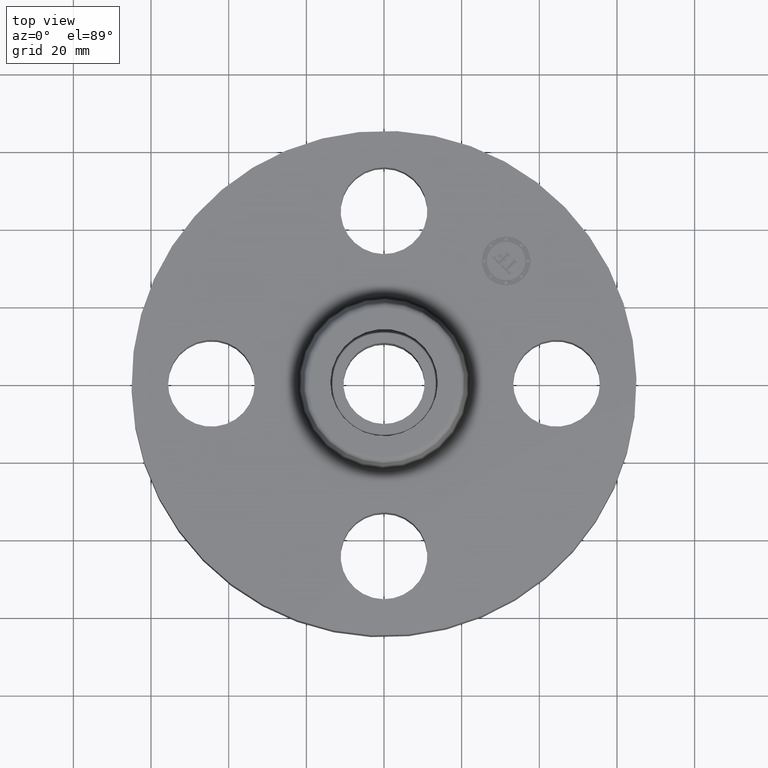
[diagram: clean part render]
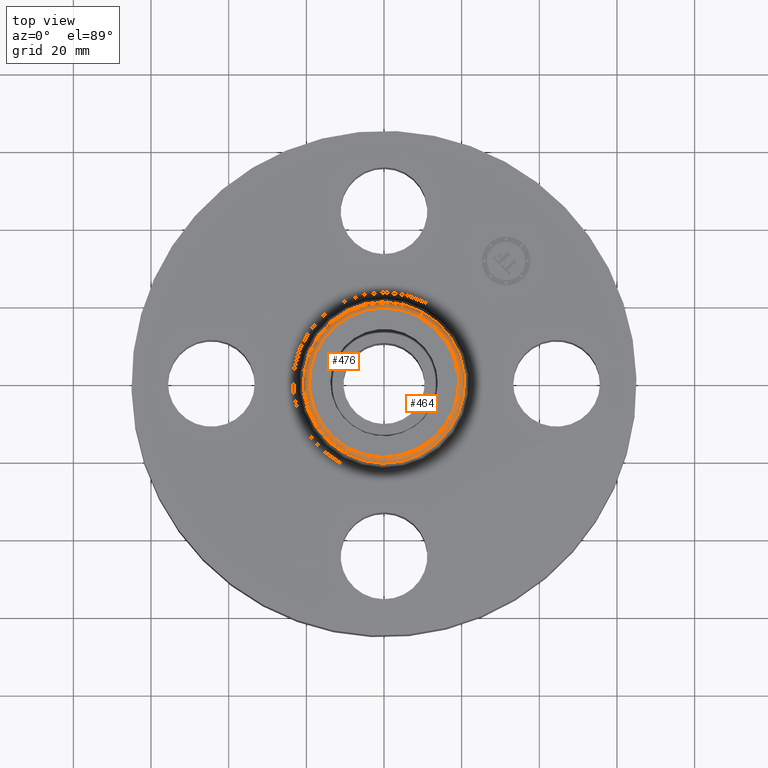
[diagram: same view with one multi-face feature highlighted, each face labeled with its STEP entity id]
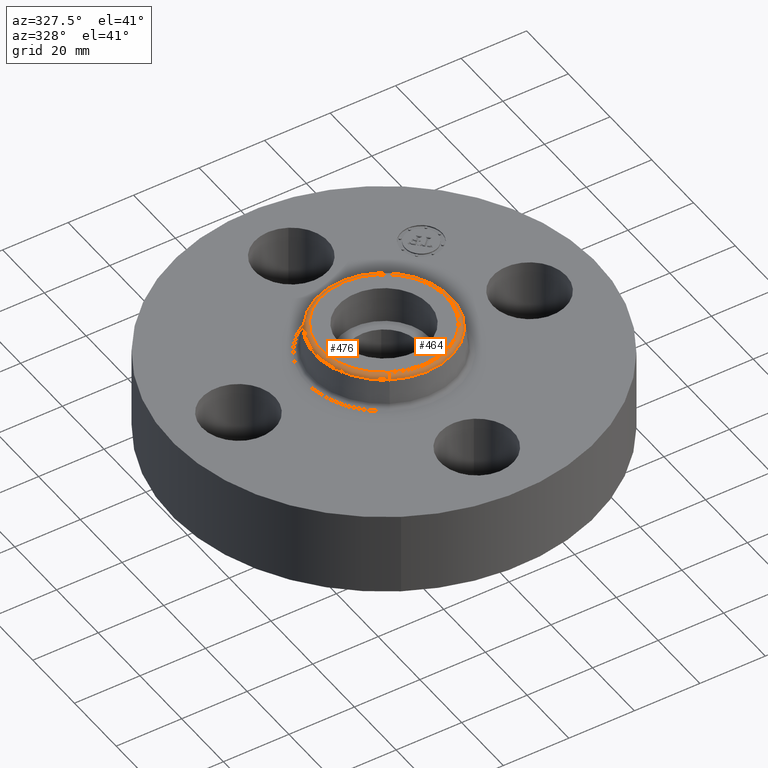
[diagram: same view with one multi-face feature highlighted, each face labeled with its STEP entity id]
A machine part, top view. The highlighted faces form ONE feature: a constant-radius fillet chain: 2 tangent blend faces with common blend radius 1.524 mm. The faces share edges in the B-rep.
A second angle (auxiliary view) of the same feature is appended — it is thin or edge-on in the first view.
Their STEP definitions:
[1] entity #464 (Torus):
#405=AXIS2_PLACEMENT_3D('Circle Axis2P3D',#403,#404,$) ;
#437=AXIS2_PLACEMENT_3D('Torus Axis2P3D',#434,#435,#436) ;
#441=AXIS2_PLACEMENT_3D('Circle Axis2P3D',#439,#440,$) ;
#448=AXIS2_PLACEMENT_3D('Circle Axis2P3D',#446,#447,$) ;
#455=AXIS2_PLACEMENT_3D('Circle Axis2P3D',#453,#454,$) ;
#400=CARTESIAN_POINT('Vertex',(0.391565168043,0.716755232353,1.33041889067)) ;
#403=CARTESIAN_POINT('Axis2P3D Location',(0.,0.,1.33041889067)) ;
#407=CARTESIAN_POINT('Vertex',(-0.391565168043,-0.716755232353,1.33041889067)) ;
#434=CARTESIAN_POINT('Axis2P3D Location',(0.,0.,1.32000000001)) ;
#439=CARTESIAN_POINT('Axis2P3D Location',(0.363236648798,0.664900225701,1.32000000001)) ;
#443=CARTESIAN_POINT('Vertex',(0.363236648798,0.664900225701,1.38000000001)) ;
#446=CARTESIAN_POINT('Axis2P3D Location',(0.,0.,1.38000000001)) ;
#450=CARTESIAN_POINT('Vertex',(-0.363236648798,-0.664900225701,1.38000000001)) ;
#453=CARTESIAN_POINT('Axis2P3D Location',(-0.363236648798,-0.664900225701,1.32000000001)) ;
#404=DIRECTION('Axis2P3D Direction',(0.,0.,-0.0393700787402)) ;
#435=DIRECTION('Axis2P3D Direction',(0.,0.,-0.0393700787402)) ;
#436=DIRECTION('Axis2P3D XDirection',(-0.0188750212049,-0.0345504945626,0.)) ;
#440=DIRECTION('Axis2P3D Direction',(-0.0345504945626,0.0188750212049,0.)) ;
#447=DIRECTION('Axis2P3D Direction',(0.,0.,-0.0393700787402)) ;
#454=DIRECTION('Axis2P3D Direction',(0.0345504945626,-0.0188750212049,0.)) ;
#459=ORIENTED_EDGE('',*,*,#409,.F.) ;
#460=ORIENTED_EDGE('',*,*,#445,.T.) ;
#461=ORIENTED_EDGE('',*,*,#452,.T.) ;
#462=ORIENTED_EDGE('',*,*,#457,.F.) ;
#464=ADVANCED_FACE('PartBody',(#463),#438,.T.) ;
#406=CIRCLE('generated circle',#405,0.816738234644) ;
#442=CIRCLE('generated circle',#441,0.0600000000002) ;
#449=CIRCLE('generated circle',#448,0.757649769463) ;
#456=CIRCLE('generated circle',#455,0.0600000000002) ;
#438=TOROIDAL_SURFACE('homeo Torus',#437,0.757649769463,0.0600000000002) ;
#409=EDGE_CURVE('',#401,#408,#406,.T.) ;
#445=EDGE_CURVE('',#401,#444,#442,.F.) ;
#452=EDGE_CURVE('',#444,#451,#449,.T.) ;
#457=EDGE_CURVE('',#408,#451,#456,.F.) ;
#458=EDGE_LOOP('',(#459,#460,#461,#462)) ;
#463=FACE_OUTER_BOUND('',#458,.T.) ;
#401=VERTEX_POINT('',#400) ;
#408=VERTEX_POINT('',#407) ;
#444=VERTEX_POINT('',#443) ;
#451=VERTEX_POINT('',#450) ;
[2] entity #476 (Torus):
#424=AXIS2_PLACEMENT_3D('Circle Axis2P3D',#422,#423,$) ;
#437=AXIS2_PLACEMENT_3D('Torus Axis2P3D',#434,#435,#436) ;
#441=AXIS2_PLACEMENT_3D('Circle Axis2P3D',#439,#440,$) ;
#455=AXIS2_PLACEMENT_3D('Circle Axis2P3D',#453,#454,$) ;
#467=AXIS2_PLACEMENT_3D('Circle Axis2P3D',#465,#466,$) ;
#400=CARTESIAN_POINT('Vertex',(0.391565168043,0.716755232353,1.33041889067)) ;
#407=CARTESIAN_POINT('Vertex',(-0.391565168043,-0.716755232353,1.33041889067)) ;
#422=CARTESIAN_POINT('Axis2P3D Location',(0.,0.,1.33041889067)) ;
#434=CARTESIAN_POINT('Axis2P3D Location',(0.,0.,1.32000000001)) ;
#439=CARTESIAN_POINT('Axis2P3D Location',(0.363236648798,0.664900225701,1.32000000001)) ;
#443=CARTESIAN_POINT('Vertex',(0.363236648798,0.664900225701,1.38000000001)) ;
#450=CARTESIAN_POINT('Vertex',(-0.363236648798,-0.664900225701,1.38000000001)) ;
#453=CARTESIAN_POINT('Axis2P3D Location',(-0.363236648798,-0.664900225701,1.32000000001)) ;
#465=CARTESIAN_POINT('Axis2P3D Location',(0.,0.,1.38000000001)) ;
#423=DIRECTION('Axis2P3D Direction',(0.,0.,-0.0393700787402)) ;
#435=DIRECTION('Axis2P3D Direction',(0.,0.,-0.0393700787402)) ;
#436=DIRECTION('Axis2P3D XDirection',(-0.0188750212049,-0.0345504945626,0.)) ;
#440=DIRECTION('Axis2P3D Direction',(-0.0345504945626,0.0188750212049,0.)) ;
#454=DIRECTION('Axis2P3D Direction',(0.0345504945626,-0.0188750212049,0.)) ;
#466=DIRECTION('Axis2P3D Direction',(0.,0.,-0.0393700787402)) ;
#471=ORIENTED_EDGE('',*,*,#426,.F.) ;
#472=ORIENTED_EDGE('',*,*,#457,.T.) ;
#473=ORIENTED_EDGE('',*,*,#469,.T.) ;
#474=ORIENTED_EDGE('',*,*,#445,.F.) ;
#476=ADVANCED_FACE('PartBody',(#475),#438,.T.) ;
#425=CIRCLE('generated circle',#424,0.816738234644) ;
#442=CIRCLE('generated circle',#441,0.0600000000002) ;
#456=CIRCLE('generated circle',#455,0.0600000000002) ;
#468=CIRCLE('generated circle',#467,0.757649769463) ;
#438=TOROIDAL_SURFACE('homeo Torus',#437,0.757649769463,0.0600000000002) ;
#426=EDGE_CURVE('',#408,#401,#425,.T.) ;
#445=EDGE_CURVE('',#401,#444,#442,.F.) ;
#457=EDGE_CURVE('',#408,#451,#456,.F.) ;
#469=EDGE_CURVE('',#451,#444,#468,.T.) ;
#470=EDGE_LOOP('',(#471,#472,#473,#474)) ;
#475=FACE_OUTER_BOUND('',#470,.T.) ;
#401=VERTEX_POINT('',#400) ;
#408=VERTEX_POINT('',#407) ;
#444=VERTEX_POINT('',#443) ;
#451=VERTEX_POINT('',#450) ;